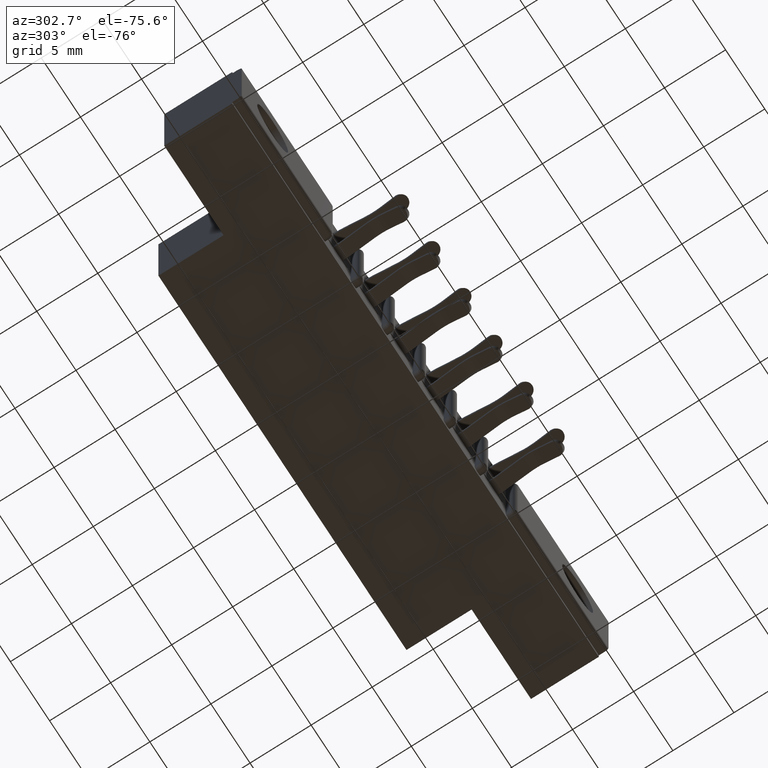
[diagram: clean part render]
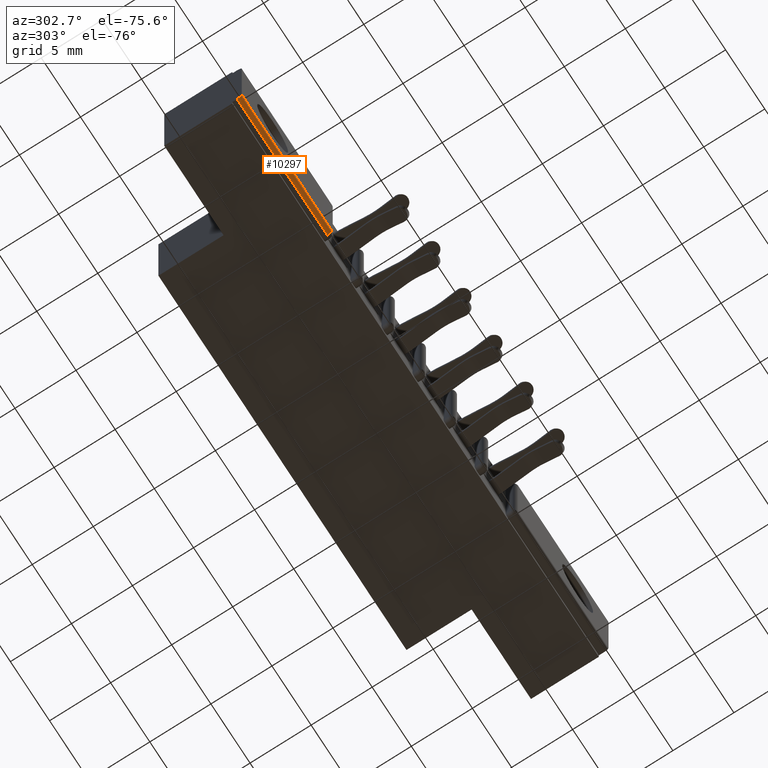
[diagram: same view with one face highlighted and labeled with its STEP entity id]
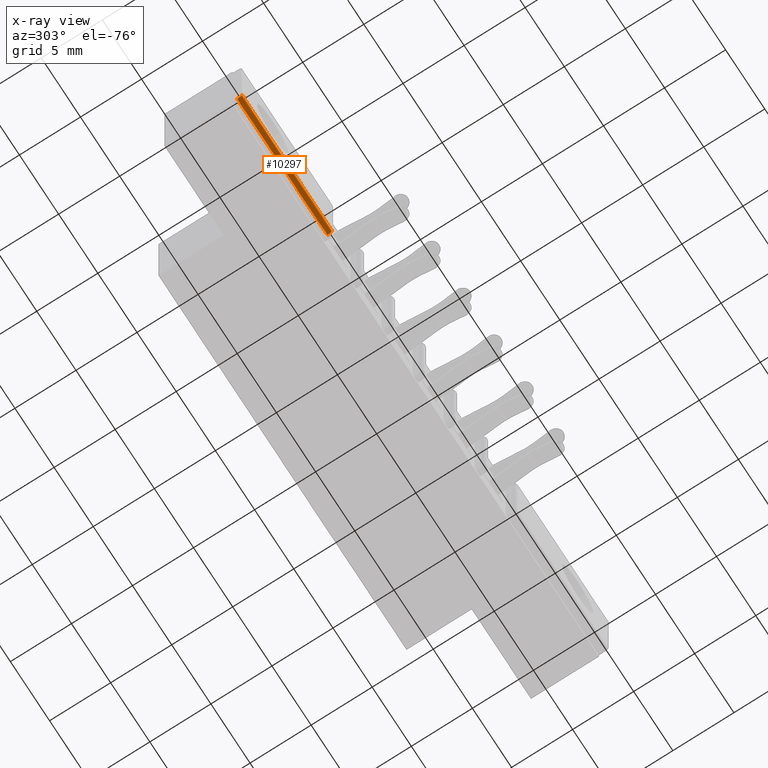
[diagram: x-ray of the same camera — body ghosted, the highlighted face saturated]
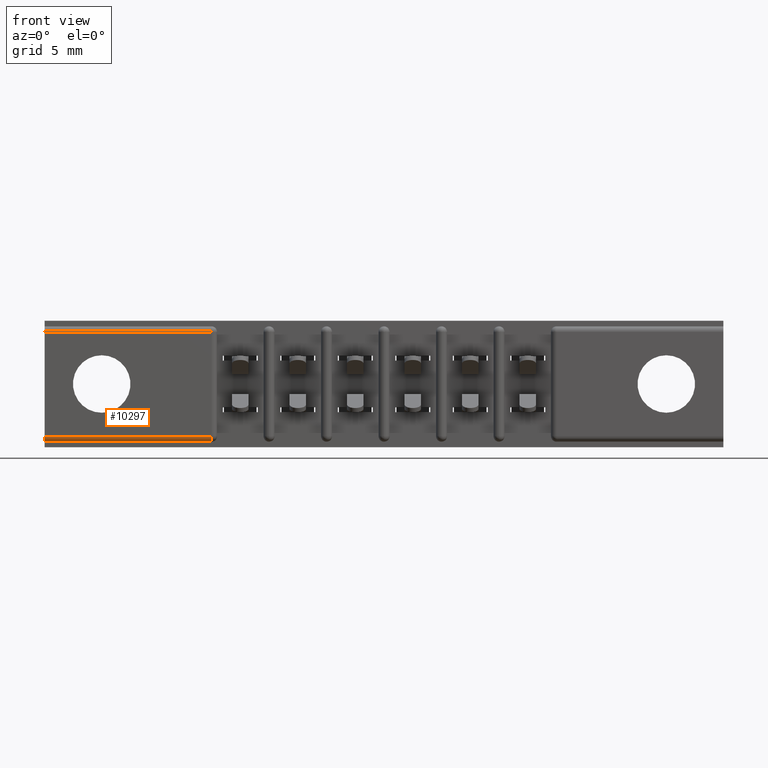
[diagram: same view with one face highlighted and labeled with its STEP entity id]
A machine part, auxiliary view. The second image highlights one B-rep face of the part: STEP entity #10297.
The next image is the same camera in x-ray: the body ghosted, the highlighted face saturated — about 0% of this face is hidden behind the body in this view.
A second angle (front view) of the same face is appended — the face is thin or edge-on in the first view.
In plain terms, the highlighted cylindrical surface (edge-blend (fillet) strip) has radius 0.381 mm, axis along (1, 0, 0).
Its self-contained STEP definition (entity closure, byte-faithful):
#1188 = EDGE_CURVE ( 'NONE', #8598, #7134, #8708, .T. ) ;
#1351 = EDGE_CURVE ( 'NONE', #8598, #1356, #8141, .T. ) ;
#1356 = VERTEX_POINT ( 'NONE', #7938 ) ;
#1371 = CARTESIAN_POINT ( 'NONE',  ( 0.0000000000000000000, 0.01499999999999999900, -0.3280000000000000100 ) ) ;
#1671 = CARTESIAN_POINT ( 'NONE',  ( 0.4530000000000003500, 0.01499999999999999900, -0.3130000000000000600 ) ) ;
#2499 = CARTESIAN_POINT ( 'NONE',  ( 0.0000000000000000000, 0.01499999999999999900, -0.3130000000000000600 ) ) ;
#3637 = CARTESIAN_POINT ( 'NONE',  ( 0.4530000000000003500, 0.01499999999999999900, -0.3280000000000000100 ) ) ;
#4311 = AXIS2_PLACEMENT_3D ( 'NONE', #2499, #9650, #4359 ) ;
#4359 = DIRECTION ( 'NONE',  ( 0.0000000000000000000, 0.0000000000000000000, -1.000000000000000000 ) ) ;
#4547 = ORIENTED_EDGE ( 'NONE', *, *, #6076, .F. ) ;
#5029 = ORIENTED_EDGE ( 'NONE', *, *, #1351, .T. ) ;
#5170 = EDGE_CURVE ( 'NONE', #7134, #11360, #9591, .T. ) ;
#5274 = DIRECTION ( 'NONE',  ( 0.0000000000000000000, 0.0000000000000000000, -1.000000000000000000 ) ) ;
#5505 = CARTESIAN_POINT ( 'NONE',  ( 1.842000000000000700, 0.0000000000000000000, -0.3130000000000000600 ) ) ;
#5510 = DIRECTION ( 'NONE',  ( 0.0000000000000000000, 0.0000000000000000000, -1.000000000000000000 ) ) ;
#5650 = VECTOR ( 'NONE', #8506, 39.37007874015748100 ) ;
#6076 = EDGE_CURVE ( 'NONE', #11360, #1356, #8304, .T. ) ;
#6352 = DIRECTION ( 'NONE',  ( 1.000000000000000000, -0.0000000000000000000, -0.0000000000000000000 ) ) ;
#6476 = EDGE_LOOP ( 'NONE', ( #10030, #5029, #4547, #9044 ) ) ;
#6943 = CYLINDRICAL_SURFACE ( 'NONE', #8233, 0.01499999999999997700 ) ;
#7023 = CARTESIAN_POINT ( 'NONE',  ( 0.0000000000000000000, 0.0000000000000000000, -0.3130000000000000600 ) ) ;
#7134 = VERTEX_POINT ( 'NONE', #10154 ) ;
#7782 = DIRECTION ( 'NONE',  ( -1.000000000000000000, -0.0000000000000000000, 0.0000000000000000000 ) ) ;
#7938 = CARTESIAN_POINT ( 'NONE',  ( 0.4530000000000003500, 0.0000000000000000000, -0.3130000000000000600 ) ) ;
#8141 = CIRCLE ( 'NONE', #10834, 0.01499999999999997700 ) ;
#8202 = FACE_OUTER_BOUND ( 'NONE', #6476, .T. ) ;
#8233 = AXIS2_PLACEMENT_3D ( 'NONE', #8253, #10758, #5510 ) ;
#8253 = CARTESIAN_POINT ( 'NONE',  ( 1.842000000000000700, 0.01499999999999999900, -0.3130000000000000600 ) ) ;
#8304 = LINE ( 'NONE', #5505, #10502 ) ;
#8506 = DIRECTION ( 'NONE',  ( -1.000000000000000000, 0.0000000000000000000, 0.0000000000000000000 ) ) ;
#8598 = VERTEX_POINT ( 'NONE', #3637 ) ;
#8708 = LINE ( 'NONE', #1371, #5650 ) ;
#9044 = ORIENTED_EDGE ( 'NONE', *, *, #5170, .F. ) ;
#9591 = CIRCLE ( 'NONE', #4311, 0.01499999999999997700 ) ;
#9650 = DIRECTION ( 'NONE',  ( -1.000000000000000000, 0.0000000000000000000, -0.0000000000000000000 ) ) ;
#10030 = ORIENTED_EDGE ( 'NONE', *, *, #1188, .F. ) ;
#10154 = CARTESIAN_POINT ( 'NONE',  ( 0.0000000000000000000, 0.01499999999999999900, -0.3280000000000000100 ) ) ;
#10297 = ADVANCED_FACE ( 'NONE', ( #8202 ), #6943, .T. ) ;
#10502 = VECTOR ( 'NONE', #6352, 39.37007874015748100 ) ;
#10758 = DIRECTION ( 'NONE',  ( 1.000000000000000000, 0.0000000000000000000, -0.0000000000000000000 ) ) ;
#10834 = AXIS2_PLACEMENT_3D ( 'NONE', #1671, #7782, #5274 ) ;
#11360 = VERTEX_POINT ( 'NONE', #7023 ) ;